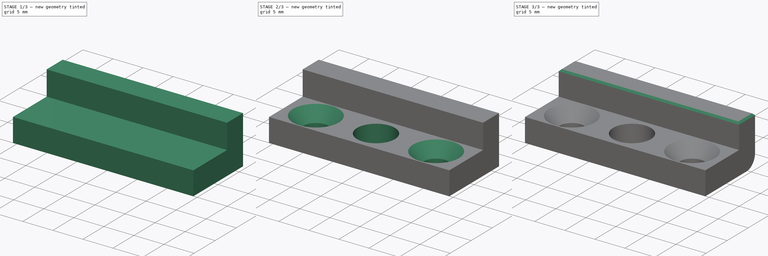
[diagram: build sequence overview — one tinted view per stage of 3, left to right]
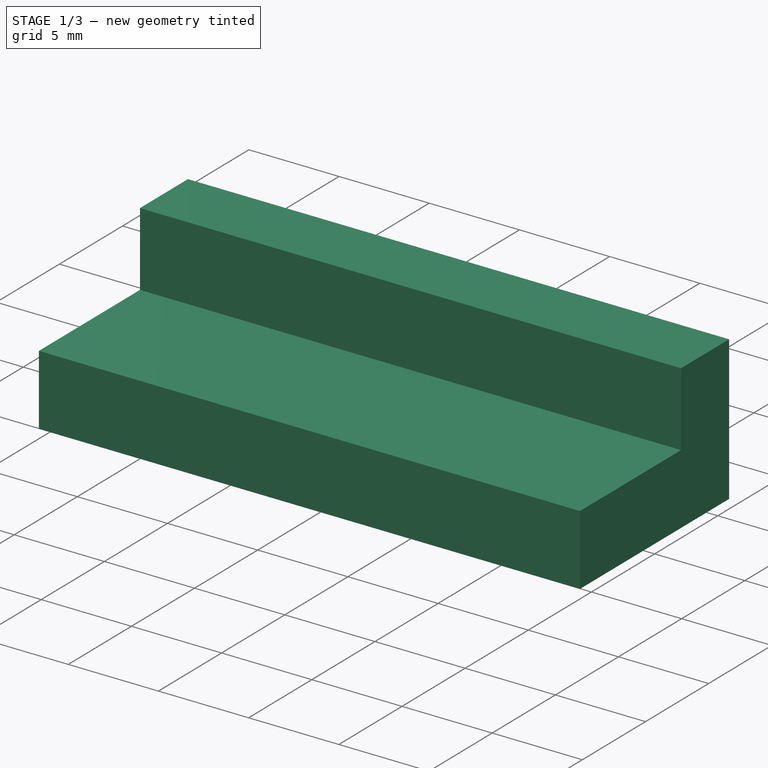
[diagram: stage 1 of 3 — iso view after this stage's code; geometry added in this stage tinted green]
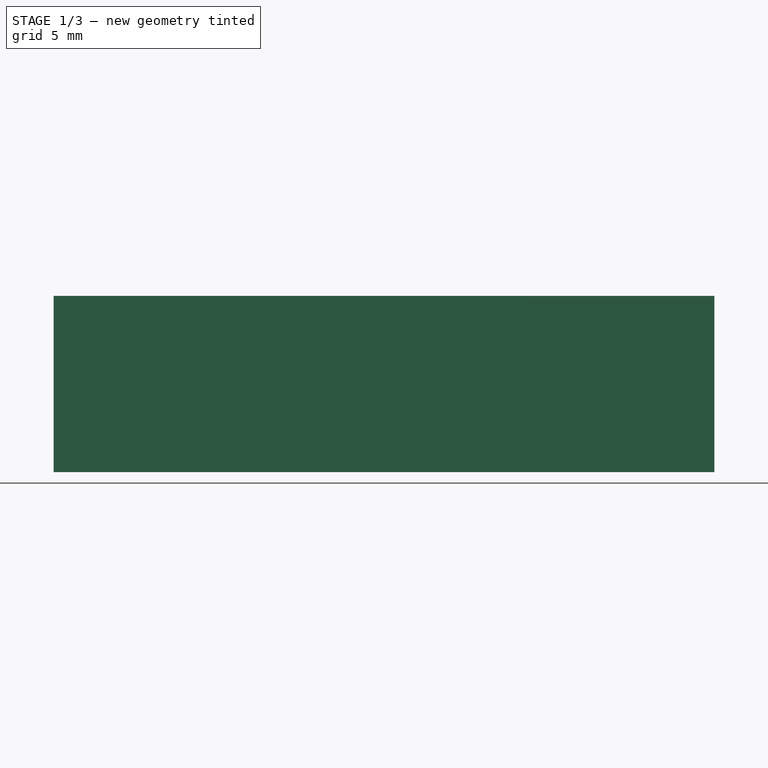
[diagram: stage 1 of 3 — front view after this stage's code; geometry added in this stage tinted green]
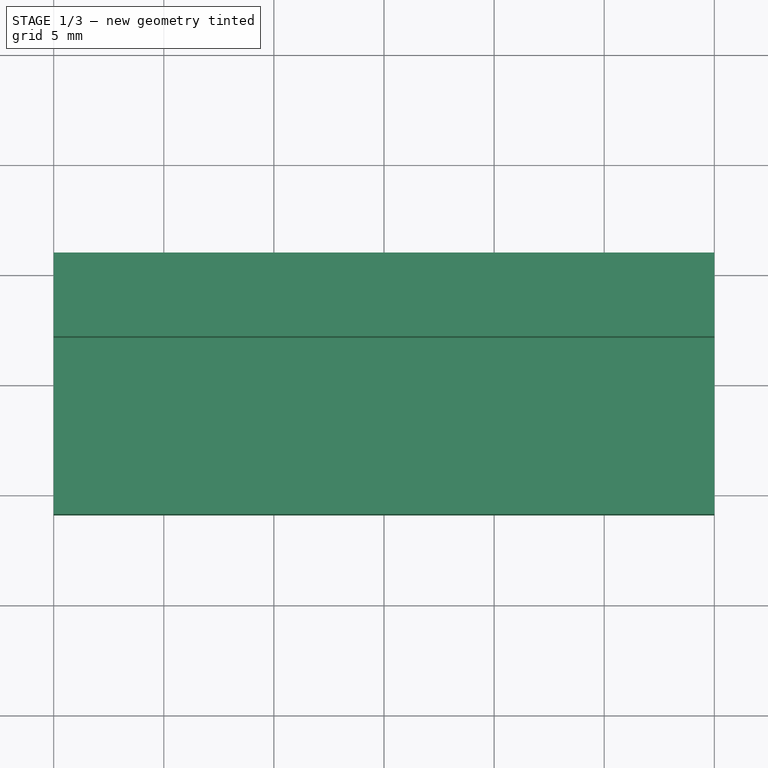
[diagram: stage 1 of 3 — top view after this stage's code; geometry added in this stage tinted green]
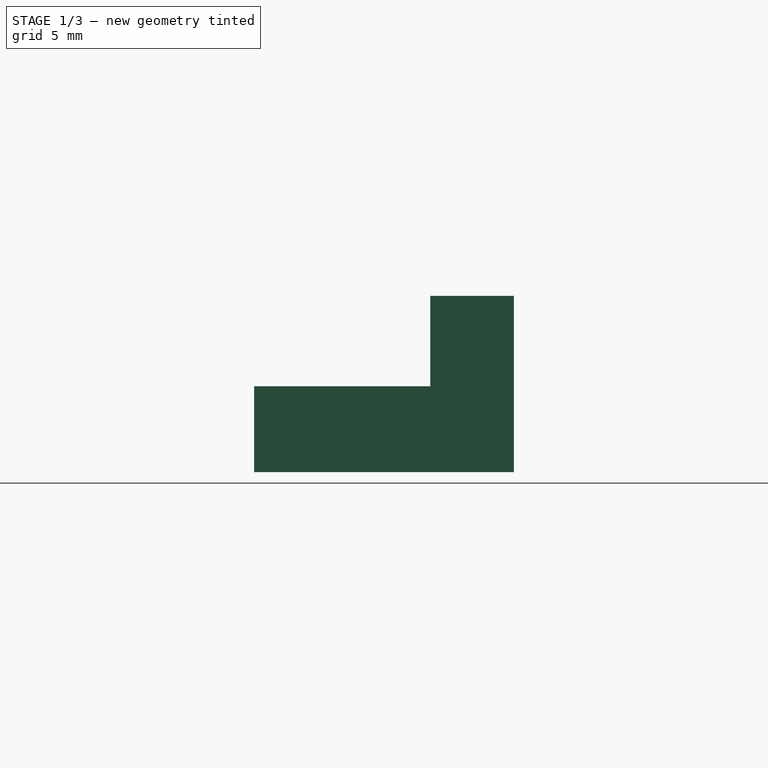
[diagram: stage 1 of 3 — right view after this stage's code; geometry added in this stage tinted green]
FCSTD DOCUMENT  (FreeCAD 0.22R38314 (Git))
Label: Latch_Magnet
License: All rights reserved
LicenseURL: https://en.wikipedia.org/wiki/All_rights_reserved
objects: Sketcher::SketchObject×3, PartDesign::Pad×2, PartDesign::Hole×2, PartDesign::Fillet×1, PartDesign::Chamfer×1, PartDesign::Body×1, Measure::MeasurePython×1
note: 22 computed .brp shape members not serialized (recipe doc carries the construction recipe); baked Part::Feature solids carry a one-line shape summary decoded from their .brp

FEATURE [Sketcher::SketchObject] Sketch  label="Base_Sketch"
  AttachmentSupport = -> [XY_Plane]
  FullyConstrained = true
  MapMode = 5
  sketch-geometry (6):
    g0: LineSegment StartX=-15 StartY=5.9 StartZ=0 EndX=-15 EndY=-5.9 EndZ=0
    g1: LineSegment StartX=-15 StartY=-5.9 StartZ=0 EndX=15 EndY=-5.9 EndZ=0
    g2: LineSegment StartX=15 StartY=-5.9 StartZ=0 EndX=15 EndY=5.9 EndZ=0
    g3: LineSegment StartX=15 StartY=5.9 StartZ=0 EndX=-15 EndY=5.9 EndZ=0
    g4: LineSegment StartX=-15 StartY=-5.9 StartZ=0 EndX=0 EndY=0 EndZ=0
    g5: LineSegment StartX=0 StartY=0 StartZ=0 EndX=15 EndY=5.9 EndZ=0
  constraints (16):
    c: Coincident(g0,g1)
    c: Coincident(g1,g2)
    c: Coincident(g2,g3)
    c: Coincident(g3,g0)
    c: Vertical(g0)
    c: Vertical(g2)
    c: Horizontal(g1)
    c: Horizontal(g3)
    c: Coincident(g4,g0)
    c: Coincident(g4,g-1)
    c: Coincident(g5,g4)
    c: Coincident(g5,g2)
    c: Parallel(g4,g5)
    c: Equal(g5,g4)
    c: DistanceX(g3,g3) = 30
    c: DistanceY(g2,g2) = 11.8
FEATURE [PartDesign::Pad] Pad  label="Base_Pad"
  Direction = (0,0,1)
  Length = 3.9
  Length2 = 10
  Profile = -> Sketch
  ReferenceAxis = -> Sketch [N_Axis]
  Refine = true
  Suppressed = false
  Type = 0
FEATURE [Sketcher::SketchObject] Sketch001  label="Arm_Sketch"
  AttachmentSupport = -> [Pad]
  ExternalGeometry = -> [Pad]
  FullyConstrained = true
  MapMode = 5
  Placement = pos=(0,0,3.9) rot=(0,0,1;0rad)
  sketch-geometry (4):
    g0: LineSegment StartX=-15 StartY=5.9 StartZ=0 EndX=-15 EndY=2.1 EndZ=0
    g1: LineSegment StartX=-15 StartY=2.1 StartZ=0 EndX=15 EndY=2.1 EndZ=0
    g2: LineSegment StartX=15 StartY=2.1 StartZ=0 EndX=15 EndY=5.9 EndZ=0
    g3: LineSegment StartX=15 StartY=5.9 StartZ=0 EndX=-15 EndY=5.9 EndZ=0
  constraints (10):
    c: Coincident(g0,g1)
    c: Coincident(g1,g2)
    c: Coincident(g2,g3)
    c: Coincident(g3,g0)
    c: Vertical(g0)
    c: Vertical(g2)
    c: Horizontal(g1)
    c: Coincident(g0,g-3)
    c: Coincident(g2,g-4)
    c: DistanceY(g2,g2) = 3.8
FEATURE [PartDesign::Pad] Pad001  label="Arm_Pad"
  BaseFeature = -> Pad
  Direction = (0,0,1)
  Length = 4.1
  Length2 = 10
  Profile = -> Sketch001
  ReferenceAxis = -> Sketch001 [N_Axis]
  Refine = true
  Suppressed = false
  Type = 0
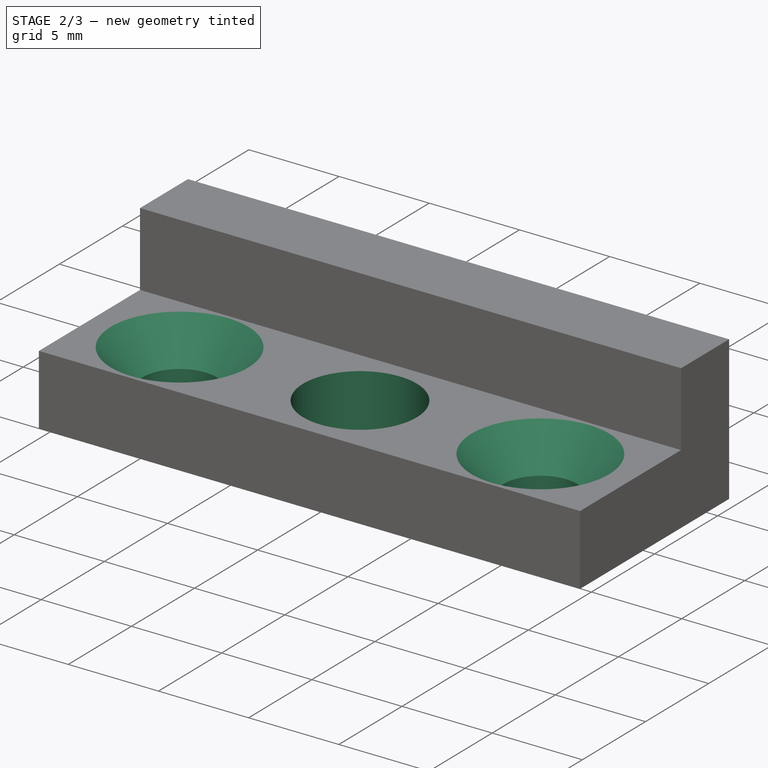
[diagram: stage 2 of 3 — iso view after this stage's code; geometry added in this stage tinted green]
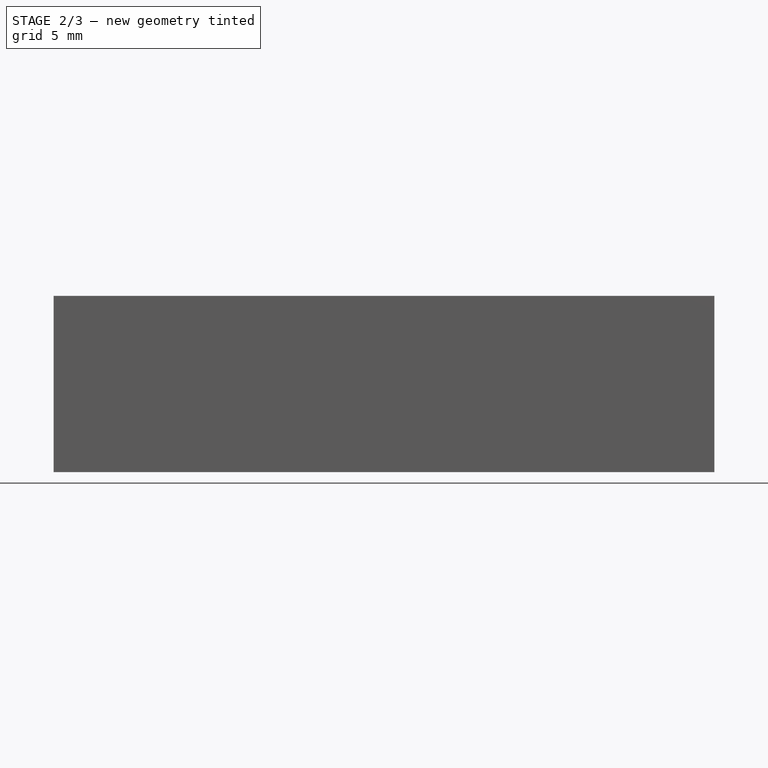
[diagram: stage 2 of 3 — front view after this stage's code; geometry added in this stage tinted green]
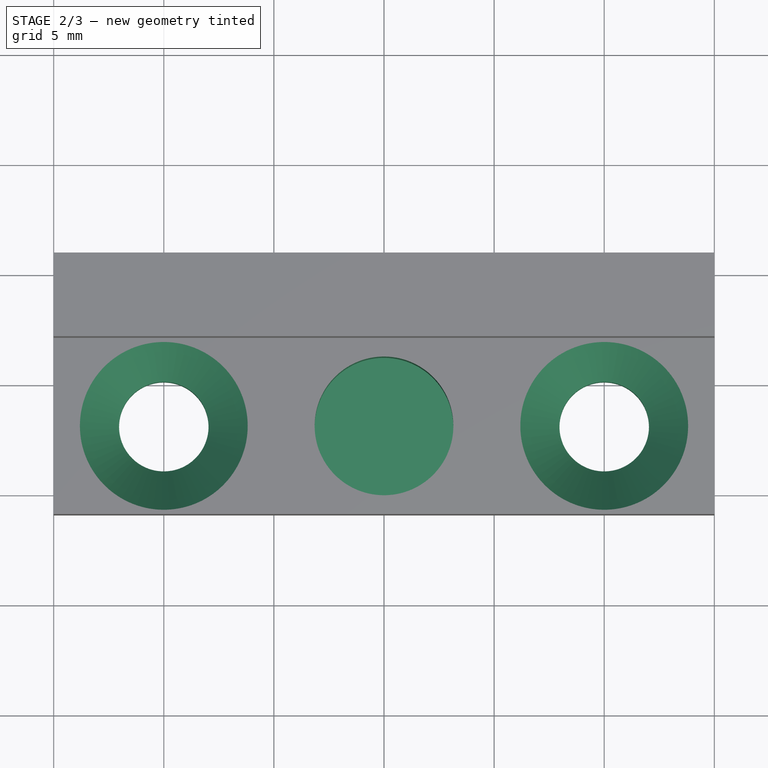
[diagram: stage 2 of 3 — top view after this stage's code; geometry added in this stage tinted green]
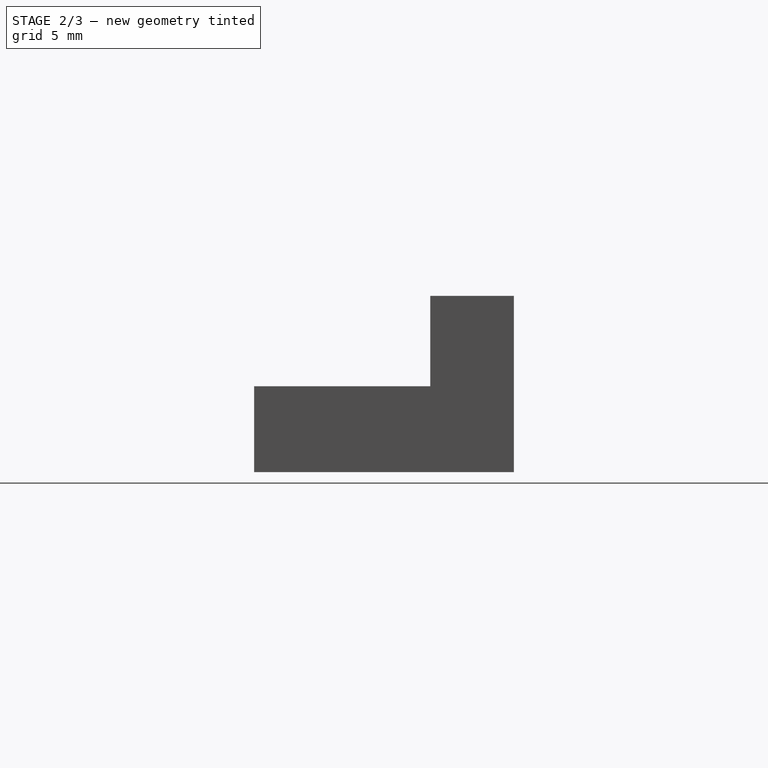
[diagram: stage 2 of 3 — right view after this stage's code; geometry added in this stage tinted green]
FEATURE [Sketcher::SketchObject] Sketch002  label="Hole_Guide_Sketch"
  AttachmentSupport = -> [Pad001]
  ExternalGeometry = -> [Pad001]
  FullyConstrained = false
  MapMode = 5
  Placement = pos=(0,0,3.9) rot=(0,0,1;0rad)
  sketch-geometry (11):
    g0: LineSegment StartX=-15 StartY=-5.9 StartZ=0 EndX=15 EndY=-5.9 EndZ=0
    g1: LineSegment StartX=15 StartY=-5.9 StartZ=0 EndX=15 EndY=2.1 EndZ=0
    g2: LineSegment StartX=15 StartY=2.1 StartZ=0 EndX=-15 EndY=2.1 EndZ=0
    g3: LineSegment StartX=-15 StartY=2.1 StartZ=0 EndX=-15 EndY=-5.9 EndZ=0
    g4: LineSegment StartX=-15 StartY=-5.9 StartZ=0 EndX=-1.8e-15 EndY=-1.9 EndZ=0
    g5: LineSegment StartX=-1.8e-15 StartY=-1.9 StartZ=0 EndX=15 EndY=2.1 EndZ=0
    g6: LineSegment StartX=-15 StartY=-1.9 StartZ=0 EndX=-1.8e-15 EndY=-1.9 EndZ=0
    g7: LineSegment StartX=-1.8e-15 StartY=-1.9 StartZ=0 EndX=15 EndY=-1.9 EndZ=0
    g8: Circle CenterX=-10 CenterY=-1.9 CenterZ=0 NormalX=0 NormalY=0 NormalZ=1 AngleXU=0 Radius=0.893432
    g9: Circle CenterX=-1.8e-15 CenterY=-1.9 CenterZ=0 NormalX=0 NormalY=0 NormalZ=1 AngleXU=0 Radius=0.937489
    g10: Circle CenterX=10 CenterY=-1.9 CenterZ=0 NormalX=0 NormalY=0 NormalZ=1 AngleXU=0 Radius=1.22182
  constraints (24):
    c: Coincident(g0,g1)
    c: Coincident(g1,g2)
    c: Coincident(g2,g3)
    c: Coincident(g3,g0)
    c: Horizontal(g0)
    c: Horizontal(g2)
    c: Vertical(g1)
    c: Vertical(g3)
    c: Coincident(g0,g-3)
    c: Coincident(g1,g-4)
    c: Coincident(g4,g0)
    c: Coincident(g5,g4)
    c: Coincident(g5,g1)
    c: Equal(g5,g4)
    c: Parallel(g5,g4)
    c: Symmetric(g3,g3,g6)
    c: Coincident(g6,g4)
    c: Coincident(g7,g4)
    c: Symmetric(g1,g1,g7)
    c: PointOnObject(g8,g6)
    c: Distance(g8,g3) = 5
    c: Coincident(g9,g4)
    c: PointOnObject(g10,g7)
    c: DistanceX(g10,g7) = 5
FEATURE [PartDesign::Hole] Hole  label="Screw_Hole"
  BaseFeature = -> Pad001
  CustomThreadClearance = 0
  Depth = 25
  DepthType = 0
  Diameter = 4.064
  DrillForDepth = false
  DrillPoint = 1
  DrillPointAngle = 118
  HoleCutCountersinkAngle = 82
  HoleCutCustomValues = false
  HoleCutDepth = 0
  HoleCutDiameter = 7.62
  HoleCutType = 2
  ModelThread = false
  Profile = -> Sketch002 [Edge1,Edge3]
  Refine = true
  Suppressed = false
  Tapered = false
  TaperedAngle = 90
  ThreadClass = 0
  ThreadDepth = 25
  ThreadDepthType = 0
  ThreadDirection = 0
  ThreadFit = 0
  ThreadSize = 0
  ThreadType = 0
  Threaded = false
  UseCustomThreadClearance = false
FEATURE [PartDesign::Hole] Hole001  label="Magnet_Hole"
  BaseFeature = -> Hole
  CustomThreadClearance = 0
  Depth = 3.5
  DepthType = 0
  Diameter = 6.3
  DrillForDepth = false
  DrillPoint = 0
  DrillPointAngle = 118
  HoleCutCountersinkAngle = 90
  HoleCutCustomValues = false
  HoleCutDepth = 0
  HoleCutDiameter = 0
  HoleCutType = 0
  ModelThread = false
  Profile = -> Sketch002 [Edge2]
  Refine = true
  Suppressed = false
  Tapered = false
  TaperedAngle = 90
  ThreadClass = 0
  ThreadDepth = 3.5
  ThreadDepthType = 0
  ThreadDirection = 0
  ThreadFit = 0
  ThreadSize = 0
  ThreadType = 0
  Threaded = false
  UseCustomThreadClearance = false
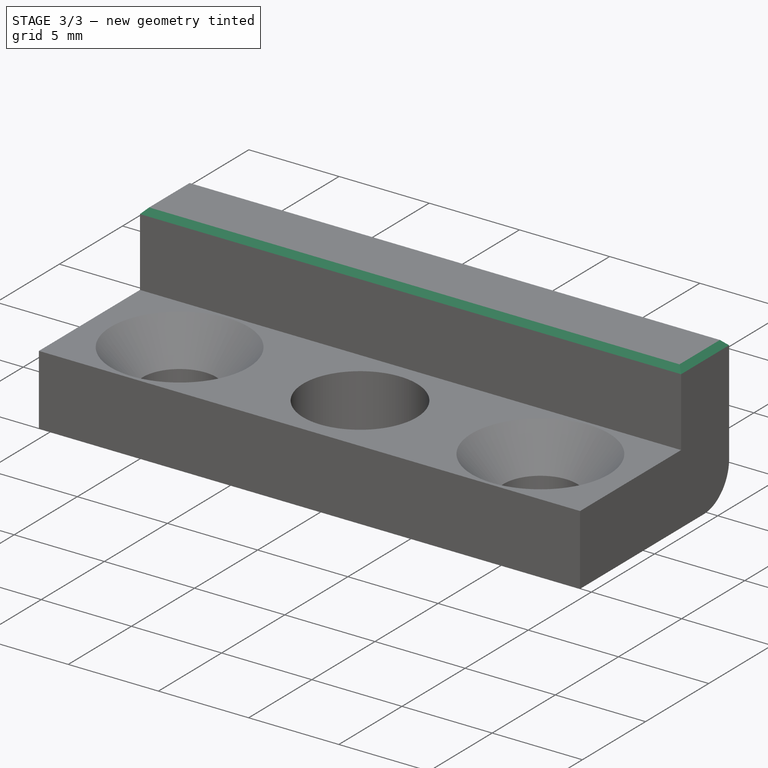
[diagram: stage 3 of 3 — iso view after this stage's code; geometry added in this stage tinted green]
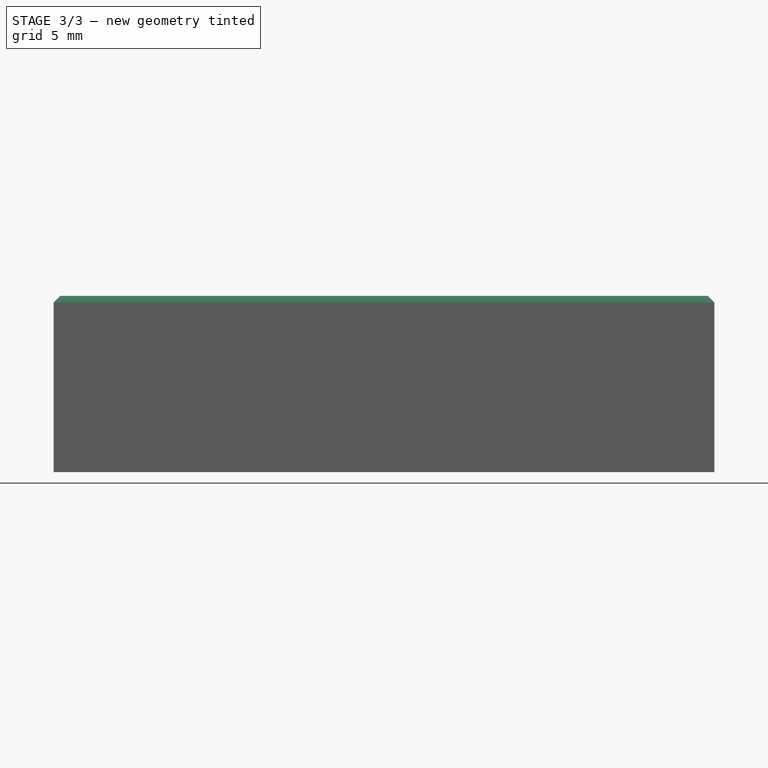
[diagram: stage 3 of 3 — front view after this stage's code; geometry added in this stage tinted green]
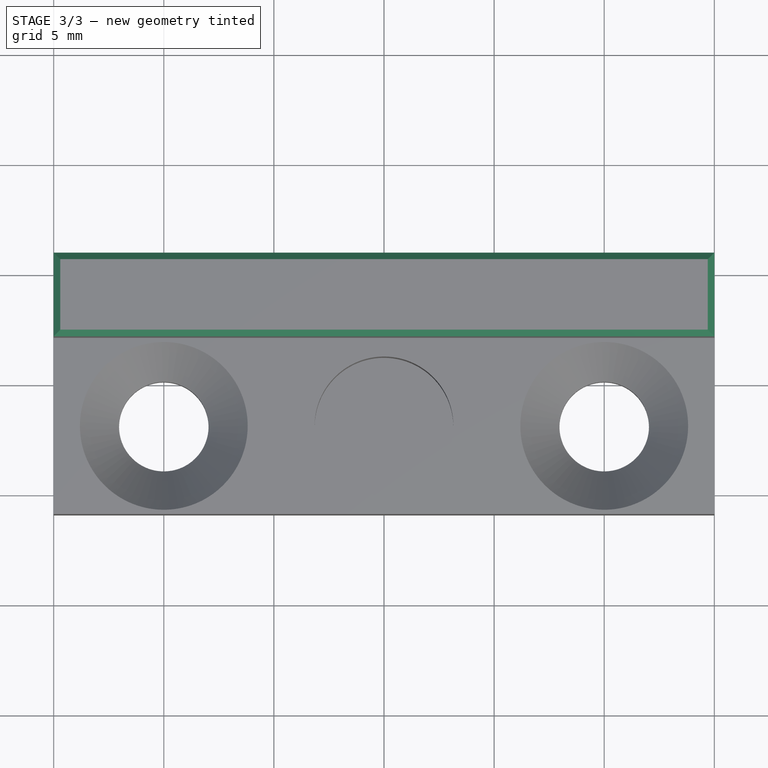
[diagram: stage 3 of 3 — top view after this stage's code; geometry added in this stage tinted green]
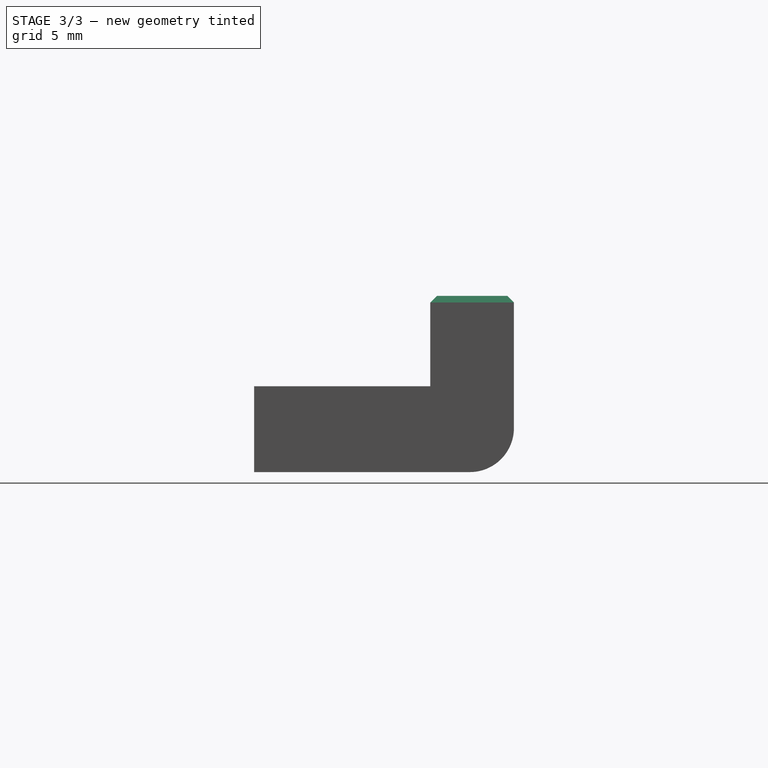
[diagram: stage 3 of 3 — right view after this stage's code; geometry added in this stage tinted green]
FEATURE [PartDesign::Fillet] Fillet
  Base = -> Hole001 [Edge15]
  BaseFeature = -> Hole001
  Radius = 2
  Refine = true
  SupportTransform = false
  Suppressed = false
  UseAllEdges = false
FEATURE [PartDesign::Chamfer] Chamfer
  Angle = 45
  Base = -> Fillet [Edge24,Edge25,Edge17,Edge6]
  BaseFeature = -> Fillet
  ChamferType = 0
  FlipDirection = false
  Refine = true
  Size = 0.3
  Size2 = 1
  SupportTransform = false
  Suppressed = false
  UseAllEdges = false
FEATURE [PartDesign::Body] Body
  AllowCompound = false
  Group = -> [Sketch,Pad,Sketch001,Pad001,Sketch002,Hole,Hole001,Fillet,Chamfer]
  Origin = -> Origin
  Tip = -> Chamfer
FEATURE [Measure::MeasurePython] Center_of_Mass  label="Center_of_Mass: COM
X: -0.00 mm
Y: 1.58 mm
Z: 4.28 mm"  # WARN: FeaturePython — macro-defined, semantics opaque (R4)
  Element = -> Body [Pad001.]
  Placement = pos=(-2e-16,1.01169,2.96169) rot=(0,0,1;0rad)
  Result = (-2e-16,1.01169,2.96169)
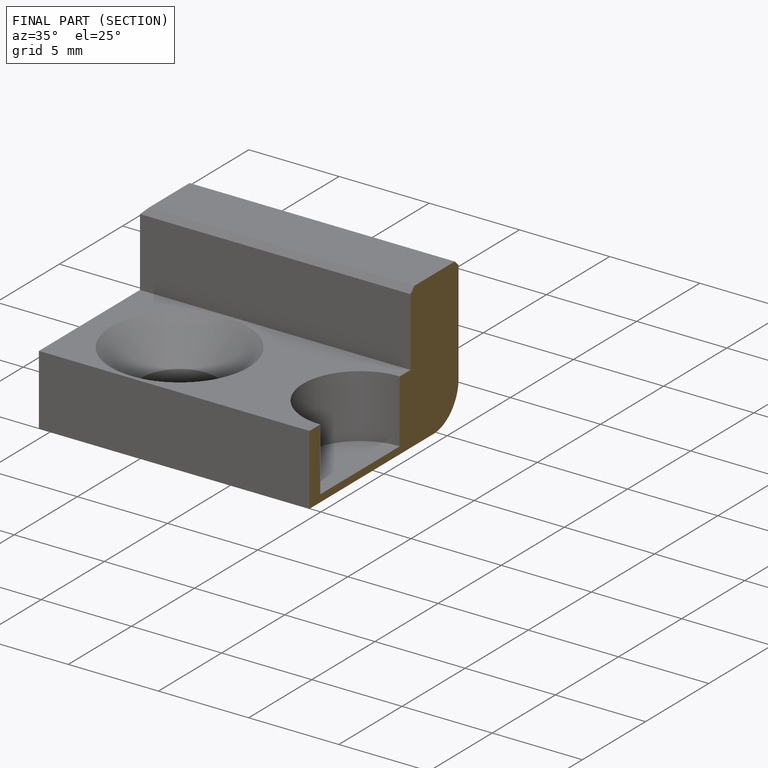
[diagram: finished part — half-section view (interior)]
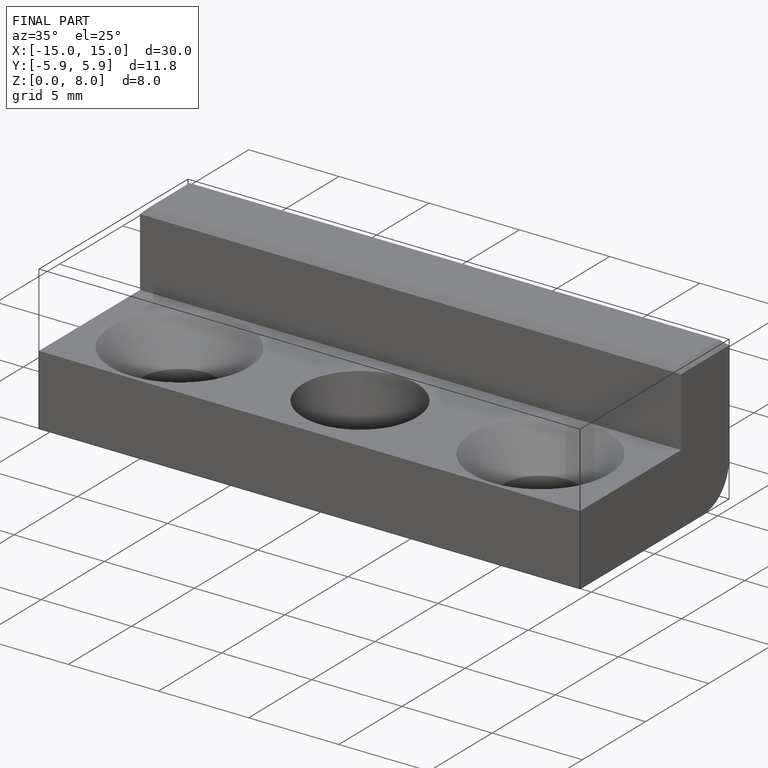
[diagram: finished part — iso view with bounding-box wireframe]
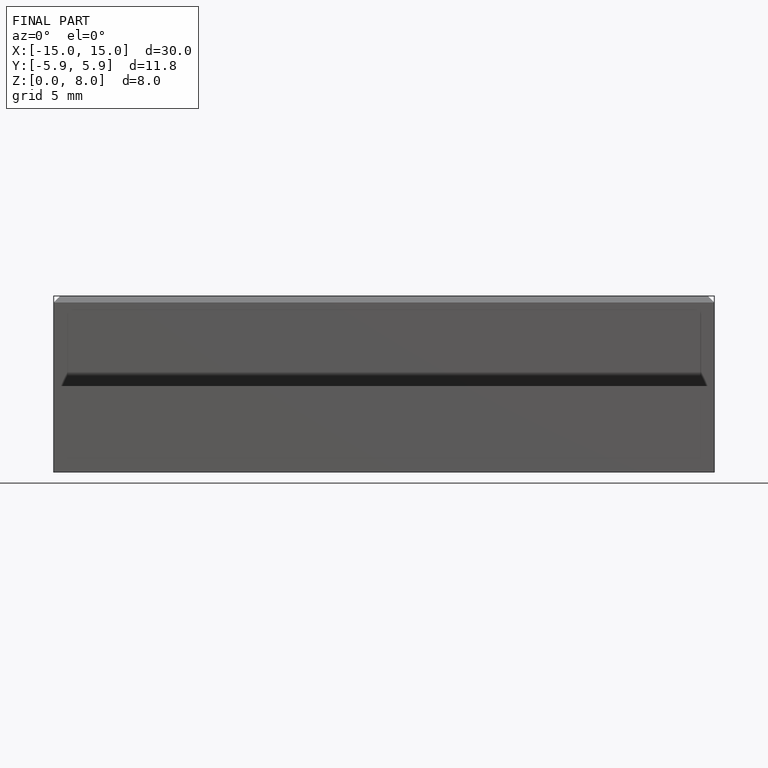
[diagram: finished part — front view with bounding-box wireframe]
